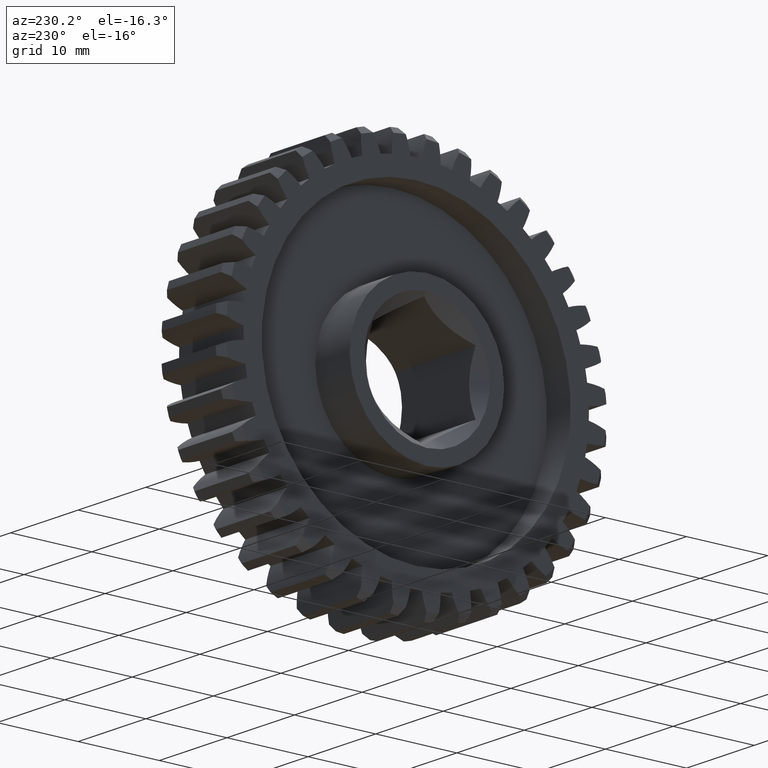
[diagram: clean part render]
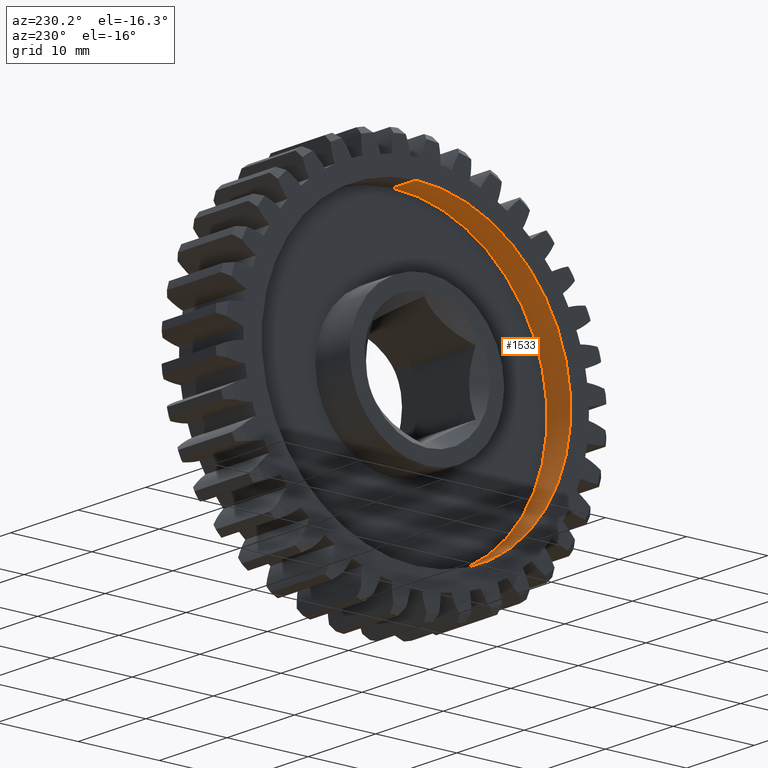
[diagram: same view with one face highlighted and labeled with its STEP entity id]
A machine part, auxiliary view. The second image highlights one B-rep face of the part: STEP entity #1533.
In plain terms, the highlighted cylindrical surface (partial cylindrical patch) has radius 19.05 mm, axis along (-1, -0, -0).
Its self-contained STEP definition (entity closure, byte-faithful):
#210 = CIRCLE ( 'NONE', #1320, 0.7500000000000001110 ) ;
#654 = DIRECTION ( 'NONE',  ( -1.000000000000000000, -0.000000000000000000, -0.000000000000000000 ) ) ;
#696 = CYLINDRICAL_SURFACE ( 'NONE', #7867, 0.7500000000000001110 ) ;
#699 = VECTOR ( 'NONE', #8079, 39.37007874015748143 ) ;
#924 = ORIENTED_EDGE ( 'NONE', *, *, #5385, .F. ) ;
#1005 = EDGE_CURVE ( 'NONE', #1923, #3903, #6315, .T. ) ;
#1100 = DIRECTION ( 'NONE',  ( -1.000000000000000000, 0.000000000000000000, 0.000000000000000000 ) ) ;
#1320 = AXIS2_PLACEMENT_3D ( 'NONE', #1751, #1100, #1705 ) ;
#1533 = ADVANCED_FACE ( 'NONE', ( #4679 ), #696, .F. ) ;
#1547 = CARTESIAN_POINT ( 'NONE',  ( 0.000000000000000000, 0.000000000000000000, 0.000000000000000000 ) ) ;
#1705 = DIRECTION ( 'NONE',  ( 0.000000000000000000, 0.000000000000000000, 1.000000000000000000 ) ) ;
#1751 = CARTESIAN_POINT ( 'NONE',  ( 0.1375000000000000111, 0.000000000000000000, 0.000000000000000000 ) ) ;
#1923 = VERTEX_POINT ( 'NONE', #6632 ) ;
#1987 = VERTEX_POINT ( 'NONE', #8548 ) ;
#2991 = DIRECTION ( 'NONE',  ( 0.000000000000000000, 0.000000000000000000, 1.000000000000000000 ) ) ;
#2995 = VERTEX_POINT ( 'NONE', #7527 ) ;
#3903 = VERTEX_POINT ( 'NONE', #4950 ) ;
#4111 = LINE ( 'NONE', #7996, #699 ) ;
#4119 = AXIS2_PLACEMENT_3D ( 'NONE', #1547, #6358, #2991 ) ;
#4679 = FACE_OUTER_BOUND ( 'NONE', #5895, .T. ) ;
#4681 = CIRCLE ( 'NONE', #4119, 0.7500000000000001110 ) ;
#4950 = CARTESIAN_POINT ( 'NONE',  ( 0.000000000000000000, 0.000000000000000000, 0.7500000000000001110 ) ) ;
#4954 = CARTESIAN_POINT ( 'NONE',  ( 0.1375000000000000111, 0.000000000000000000, 0.7500000000000001110 ) ) ;
#5262 = EDGE_CURVE ( 'NONE', #1987, #3903, #4681, .T. ) ;
#5385 = EDGE_CURVE ( 'NONE', #2995, #1923, #210, .T. ) ;
#5895 = EDGE_LOOP ( 'NONE', ( #924, #6162, #6848, #7234 ) ) ;
#6162 = ORIENTED_EDGE ( 'NONE', *, *, #7565, .T. ) ;
#6315 = LINE ( 'NONE', #4954, #7997 ) ;
#6358 = DIRECTION ( 'NONE',  ( -1.000000000000000000, 0.000000000000000000, 0.000000000000000000 ) ) ;
#6632 = CARTESIAN_POINT ( 'NONE',  ( 0.1375000000000000111, 0.000000000000000000, 0.7500000000000001110 ) ) ;
#6639 = CARTESIAN_POINT ( 'NONE',  ( 0.1375000000000000111, 0.000000000000000000, 0.000000000000000000 ) ) ;
#6848 = ORIENTED_EDGE ( 'NONE', *, *, #5262, .T. ) ;
#7234 = ORIENTED_EDGE ( 'NONE', *, *, #1005, .F. ) ;
#7345 = DIRECTION ( 'NONE',  ( 0.000000000000000000, 0.000000000000000000, 1.000000000000000000 ) ) ;
#7527 = CARTESIAN_POINT ( 'NONE',  ( 0.1375000000000000111, 9.184850993605150903E-17, -0.7500000000000001110 ) ) ;
#7565 = EDGE_CURVE ( 'NONE', #2995, #1987, #4111, .T. ) ;
#7623 = DIRECTION ( 'NONE',  ( -1.000000000000000000, -0.000000000000000000, -0.000000000000000000 ) ) ;
#7867 = AXIS2_PLACEMENT_3D ( 'NONE', #6639, #654, #7345 ) ;
#7996 = CARTESIAN_POINT ( 'NONE',  ( 0.1375000000000000111, 9.184850993605150903E-17, -0.7500000000000001110 ) ) ;
#7997 = VECTOR ( 'NONE', #7623, 39.37007874015748143 ) ;
#8079 = DIRECTION ( 'NONE',  ( -1.000000000000000000, -0.000000000000000000, -0.000000000000000000 ) ) ;
#8548 = CARTESIAN_POINT ( 'NONE',  ( 0.000000000000000000, 9.184850993605150903E-17, -0.7500000000000001110 ) ) ;